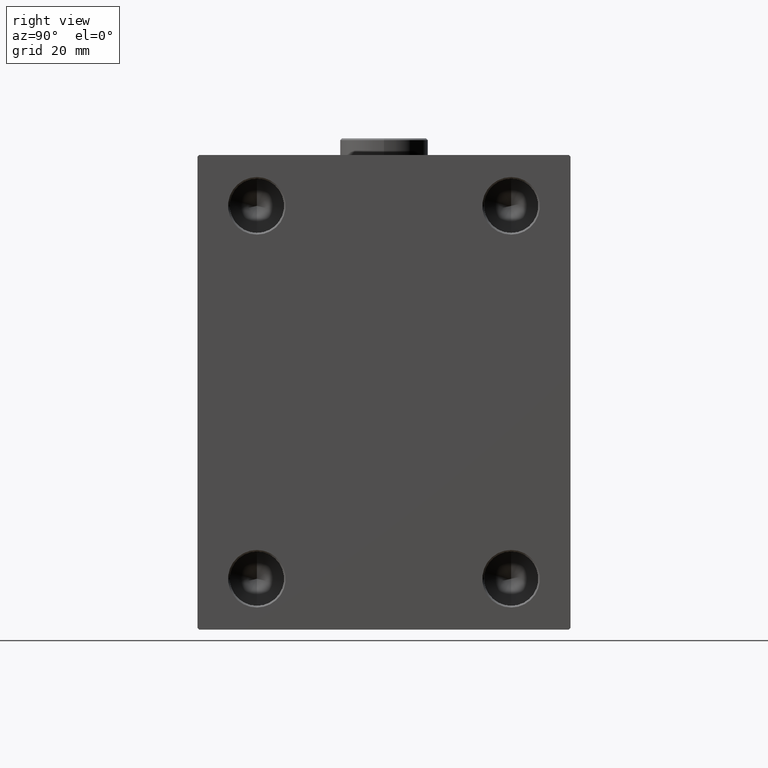
[diagram: clean part render]
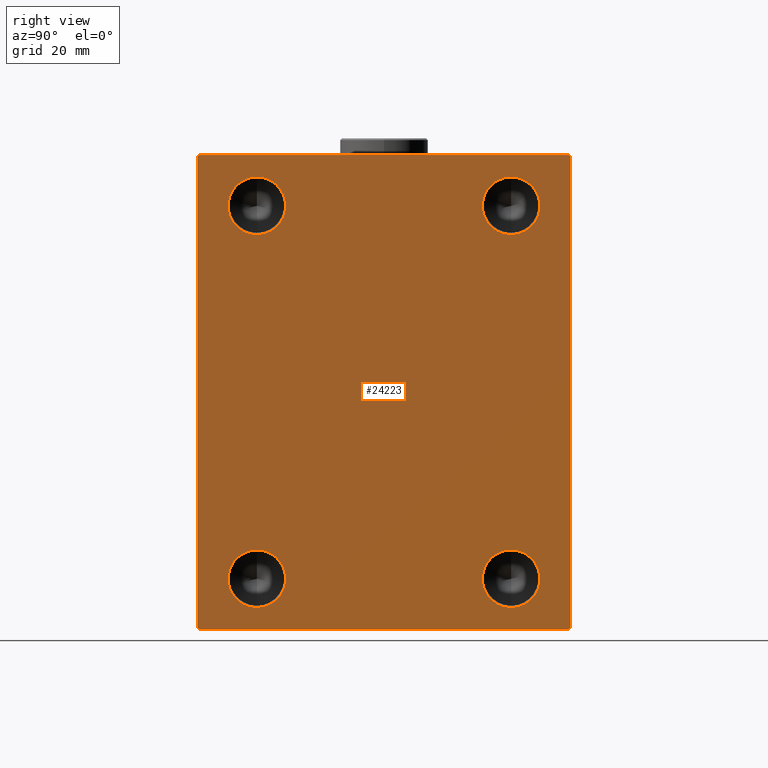
[diagram: same view with one face highlighted and labeled with its STEP entity id]
A machine part, right view. The second image highlights one B-rep face of the part: STEP entity #24223.
In plain terms, the highlighted planar face has unit normal (1, 0, 0).
Its self-contained STEP definition (entity closure, byte-faithful):
#337 = CIRCLE ( 'NONE', #5431, 8.500000000000007105 ) ;
#409 = FACE_BOUND ( 'NONE', #14950, .T. ) ;
#750 = DIRECTION ( 'NONE',  ( 0.000000000000000000, 1.000000000000000000, 1.261617073437677752E-16 ) ) ;
#1080 = CIRCLE ( 'NONE', #6965, 8.500000000000007105 ) ;
#2151 = VERTEX_POINT ( 'NONE', #40454 ) ;
#2391 = CARTESIAN_POINT ( 'NONE',  ( 103.0000000000000000, 55.00000000000000711, -69.49999999999998579 ) ) ;
#2850 = EDGE_CURVE ( 'NONE', #17436, #21728, #36789, .T. ) ;
#3098 = VERTEX_POINT ( 'NONE', #27493 ) ;
#3274 = AXIS2_PLACEMENT_3D ( 'NONE', #36089, #15593, #29849 ) ;
#4138 = CARTESIAN_POINT ( 'NONE',  ( 103.0000000000000000, -37.49999999999999289, -54.99999999999999289 ) ) ;
#4281 = CARTESIAN_POINT ( 'NONE',  ( 103.0000000000000000, -37.49999999999999289, 55.00000000000000711 ) ) ;
#4316 = VERTEX_POINT ( 'NONE', #9520 ) ;
#4649 = CIRCLE ( 'NONE', #19404, 8.500000000000007105 ) ;
#4654 = DIRECTION ( 'NONE',  ( 0.000000000000000000, 0.000000000000000000, -1.000000000000000000 ) ) ;
#5084 = DIRECTION ( 'NONE',  ( 0.000000000000000000, -0.7071067811865524577, -0.7071067811865426878 ) ) ;
#5210 = CARTESIAN_POINT ( 'NONE',  ( 103.0000000000000000, 62.25000000000191136, -62.24999999999759126 ) ) ;
#5243 = CARTESIAN_POINT ( 'NONE',  ( 103.0000000000000000, 55.00000000000000711, -69.99999999999998579 ) ) ;
#5431 = AXIS2_PLACEMENT_3D ( 'NONE', #39242, #15519, #8156 ) ;
#5439 = VERTEX_POINT ( 'NONE', #10387 ) ;
#5454 = VERTEX_POINT ( 'NONE', #29460 ) ;
#5805 = ORIENTED_EDGE ( 'NONE', *, *, #45050, .F. ) ;
#6965 = AXIS2_PLACEMENT_3D ( 'NONE', #4138, #18167, #11272 ) ;
#7426 = CARTESIAN_POINT ( 'NONE',  ( 103.0000000000000000, -55.00000000000000000, -70.00000000000000000 ) ) ;
#7485 = EDGE_CURVE ( 'NONE', #2151, #43047, #8080, .T. ) ;
#7960 = LINE ( 'NONE', #36278, #25871 ) ;
#8080 = LINE ( 'NONE', #36166, #21189 ) ;
#8156 = DIRECTION ( 'NONE',  ( 0.000000000000000000, 0.000000000000000000, -1.000000000000000000 ) ) ;
#8375 = EDGE_CURVE ( 'NONE', #24090, #2151, #42102, .T. ) ;
#8436 = CIRCLE ( 'NONE', #3274, 8.500000000000007105 ) ;
#8501 = AXIS2_PLACEMENT_3D ( 'NONE', #33181, #12242, #43995 ) ;
#9210 = ORIENTED_EDGE ( 'NONE', *, *, #38214, .T. ) ;
#9520 = CARTESIAN_POINT ( 'NONE',  ( 103.0000000000000000, -37.49999999999999289, 46.50000000000000000 ) ) ;
#9605 = LINE ( 'NONE', #27088, #24535 ) ;
#10101 = ORIENTED_EDGE ( 'NONE', *, *, #32319, .T. ) ;
#10114 = DIRECTION ( 'NONE',  ( -0.000000000000000000, -0.7071067811865671127, 0.7071067811865279218 ) ) ;
#10228 = VECTOR ( 'NONE', #33764, 1000.000000000000000 ) ;
#10337 = ORIENTED_EDGE ( 'NONE', *, *, #8375, .T. ) ;
#10387 = CARTESIAN_POINT ( 'NONE',  ( 103.0000000000000000, -37.49999999999999289, -46.49999999999998579 ) ) ;
#10553 = EDGE_LOOP ( 'NONE', ( #20799, #10646 ) ) ;
#10646 = ORIENTED_EDGE ( 'NONE', *, *, #29412, .F. ) ;
#10931 = VECTOR ( 'NONE', #20943, 1000.000000000000000 ) ;
#11193 = DIRECTION ( 'NONE',  ( 0.000000000000000000, 0.000000000000000000, -1.000000000000000000 ) ) ;
#11272 = DIRECTION ( 'NONE',  ( 0.000000000000000000, 0.000000000000000000, -1.000000000000000000 ) ) ;
#11288 = CARTESIAN_POINT ( 'NONE',  ( 103.0000000000000000, -37.49999999999999289, -54.99999999999999289 ) ) ;
#11474 = ORIENTED_EDGE ( 'NONE', *, *, #14219, .T. ) ;
#11933 = VERTEX_POINT ( 'NONE', #23659 ) ;
#12120 = DIRECTION ( 'NONE',  ( -0.000000000000000000, 0.7071067811865230368, 0.7071067811865721087 ) ) ;
#12242 = DIRECTION ( 'NONE',  ( 1.000000000000000000, -0.000000000000000000, -0.000000000000000000 ) ) ;
#12284 = ORIENTED_EDGE ( 'NONE', *, *, #44834, .F. ) ;
#12549 = DIRECTION ( 'NONE',  ( 0.000000000000000000, 0.000000000000000000, -1.000000000000000000 ) ) ;
#12623 = DIRECTION ( 'NONE',  ( 0.000000000000000000, 0.000000000000000000, -1.000000000000000000 ) ) ;
#12633 = DIRECTION ( 'NONE',  ( 0.000000000000000000, 0.000000000000000000, -1.000000000000000000 ) ) ;
#12772 = VECTOR ( 'NONE', #750, 1000.000000000000000 ) ;
#13772 = CARTESIAN_POINT ( 'NONE',  ( 103.0000000000000000, -55.00000000000000000, 69.50000000000002842 ) ) ;
#14219 = EDGE_CURVE ( 'NONE', #45339, #17436, #33055, .T. ) ;
#14845 = EDGE_LOOP ( 'NONE', ( #10337, #31735, #43805, #34732, #10101, #11474, #42553, #9210 ) ) ;
#14950 = EDGE_LOOP ( 'NONE', ( #12284, #23741 ) ) ;
#15308 = CARTESIAN_POINT ( 'NONE',  ( 103.0000000000000000, 54.50000000000004263, -69.99999999999998579 ) ) ;
#15519 = DIRECTION ( 'NONE',  ( 1.000000000000000000, -0.000000000000000000, -0.000000000000000000 ) ) ;
#15593 = DIRECTION ( 'NONE',  ( 1.000000000000000000, -0.000000000000000000, -0.000000000000000000 ) ) ;
#16157 = CARTESIAN_POINT ( 'NONE',  ( 103.0000000000000000, -37.49999999999999289, 63.50000000000001421 ) ) ;
#16822 = CARTESIAN_POINT ( 'NONE',  ( 103.0000000000000000, 37.50000000000000000, 63.50000000000001421 ) ) ;
#17130 = AXIS2_PLACEMENT_3D ( 'NONE', #25822, #36187, #4654 ) ;
#17433 = CARTESIAN_POINT ( 'NONE',  ( 103.0000000000000000, 54.49999999999999289, 70.00000000000001421 ) ) ;
#17436 = VERTEX_POINT ( 'NONE', #2391 ) ;
#17882 = FACE_BOUND ( 'NONE', #31358, .T. ) ;
#18167 = DIRECTION ( 'NONE',  ( 1.000000000000000000, -0.000000000000000000, -0.000000000000000000 ) ) ;
#19404 = AXIS2_PLACEMENT_3D ( 'NONE', #4281, #42727, #11193 ) ;
#20234 = CARTESIAN_POINT ( 'NONE',  ( 103.0000000000000000, 37.50000000000000000, -54.99999999999999289 ) ) ;
#20799 = ORIENTED_EDGE ( 'NONE', *, *, #26431, .F. ) ;
#20943 = DIRECTION ( 'NONE',  ( 0.000000000000000000, -1.000000000000000000, -1.261617073437677999E-16 ) ) ;
#21189 = VECTOR ( 'NONE', #5084, 1000.000000000000000 ) ;
#21388 = VERTEX_POINT ( 'NONE', #16822 ) ;
#21498 = CARTESIAN_POINT ( 'NONE',  ( 103.0000000000000000, 37.50000000000000000, -63.50000000000000000 ) ) ;
#21728 = VERTEX_POINT ( 'NONE', #23923 ) ;
#22354 = EDGE_CURVE ( 'NONE', #11933, #5454, #7960, .T. ) ;
#23659 = CARTESIAN_POINT ( 'NONE',  ( 103.0000000000000000, -55.00000000000000000, -69.50000000000000000 ) ) ;
#23741 = ORIENTED_EDGE ( 'NONE', *, *, #41951, .F. ) ;
#23923 = CARTESIAN_POINT ( 'NONE',  ( 103.0000000000000000, 54.99999999999999289, 69.50000000000004263 ) ) ;
#23984 = VERTEX_POINT ( 'NONE', #34241 ) ;
#24090 = VERTEX_POINT ( 'NONE', #17433 ) ;
#24223 = ADVANCED_FACE ( 'NONE', ( #17882, #31924, #409, #40423, #40203 ), #26587, .T. ) ;
#24535 = VECTOR ( 'NONE', #37238, 1000.000000000000000 ) ;
#25084 = EDGE_LOOP ( 'NONE', ( #35256, #37980 ) ) ;
#25319 = DIRECTION ( 'NONE',  ( 1.000000000000000000, -0.000000000000000000, -0.000000000000000000 ) ) ;
#25558 = CARTESIAN_POINT ( 'NONE',  ( 103.0000000000000000, 37.50000000000000000, -46.49999999999998579 ) ) ;
#25822 = CARTESIAN_POINT ( 'NONE',  ( 103.0000000000000000, -37.49999999999999289, 55.00000000000000711 ) ) ;
#25871 = VECTOR ( 'NONE', #29585, 1000.000000000000000 ) ;
#26136 = CIRCLE ( 'NONE', #8501, 8.500000000000007105 ) ;
#26431 = EDGE_CURVE ( 'NONE', #43889, #4316, #4649, .T. ) ;
#26587 = PLANE ( 'NONE',  #37705 ) ;
#27088 = CARTESIAN_POINT ( 'NONE',  ( 103.0000000000000000, -55.00000000000000000, 70.00000000000000000 ) ) ;
#27143 = CARTESIAN_POINT ( 'NONE',  ( 103.0000000000000000, 62.24999999999849365, 62.25000000000193978 ) ) ;
#27493 = CARTESIAN_POINT ( 'NONE',  ( 103.0000000000000000, -37.49999999999999289, -63.50000000000000000 ) ) ;
#27829 = LINE ( 'NONE', #27143, #28395 ) ;
#27946 = ORIENTED_EDGE ( 'NONE', *, *, #40190, .F. ) ;
#28395 = VECTOR ( 'NONE', #10114, 1000.000000000000000 ) ;
#29412 = EDGE_CURVE ( 'NONE', #4316, #43889, #42852, .T. ) ;
#29460 = CARTESIAN_POINT ( 'NONE',  ( 103.0000000000000000, -54.49999999999997158, -70.00000000000000000 ) ) ;
#29585 = DIRECTION ( 'NONE',  ( -0.000000000000000000, 0.7071067811865672237, -0.7071067811865279218 ) ) ;
#29672 = CIRCLE ( 'NONE', #40718, 8.500000000000007105 ) ;
#29849 = DIRECTION ( 'NONE',  ( 0.000000000000000000, 0.000000000000000000, -1.000000000000000000 ) ) ;
#30042 = DIRECTION ( 'NONE',  ( 1.000000000000000000, 0.000000000000000000, 0.000000000000000000 ) ) ;
#30455 = AXIS2_PLACEMENT_3D ( 'NONE', #11288, #25319, #12633 ) ;
#30796 = VECTOR ( 'NONE', #12120, 999.9999999999998863 ) ;
#31278 = CARTESIAN_POINT ( 'NONE',  ( 103.0000000000000000, 54.99999999999999289, 70.00000000000001421 ) ) ;
#31358 = EDGE_LOOP ( 'NONE', ( #5805, #27946 ) ) ;
#31735 = ORIENTED_EDGE ( 'NONE', *, *, #7485, .T. ) ;
#31924 = FACE_BOUND ( 'NONE', #10553, .T. ) ;
#32319 = EDGE_CURVE ( 'NONE', #5454, #45339, #36179, .T. ) ;
#33041 = VERTEX_POINT ( 'NONE', #21498 ) ;
#33055 = LINE ( 'NONE', #5210, #30796 ) ;
#33181 = CARTESIAN_POINT ( 'NONE',  ( 103.0000000000000000, 37.50000000000000000, -54.99999999999999289 ) ) ;
#33504 = CARTESIAN_POINT ( 'NONE',  ( 103.0000000000000000, 0.000000000000000000, 0.000000000000000000 ) ) ;
#33764 = DIRECTION ( 'NONE',  ( 0.000000000000000000, -9.912705577010325549E-17, 1.000000000000000000 ) ) ;
#34241 = CARTESIAN_POINT ( 'NONE',  ( 103.0000000000000000, 37.50000000000000000, 46.50000000000000000 ) ) ;
#34732 = ORIENTED_EDGE ( 'NONE', *, *, #22354, .T. ) ;
#35256 = ORIENTED_EDGE ( 'NONE', *, *, #35905, .F. ) ;
#35905 = EDGE_CURVE ( 'NONE', #38131, #33041, #26136, .T. ) ;
#36089 = CARTESIAN_POINT ( 'NONE',  ( 103.0000000000000000, 37.50000000000000000, 55.00000000000000711 ) ) ;
#36166 = CARTESIAN_POINT ( 'NONE',  ( 103.0000000000000000, -62.24999999999963762, 62.25000000000049738 ) ) ;
#36179 = LINE ( 'NONE', #7426, #12772 ) ;
#36187 = DIRECTION ( 'NONE',  ( 1.000000000000000000, -0.000000000000000000, -0.000000000000000000 ) ) ;
#36278 = CARTESIAN_POINT ( 'NONE',  ( 103.0000000000000000, -62.24999999999847233, -62.25000000000193268 ) ) ;
#36789 = LINE ( 'NONE', #5243, #10228 ) ;
#37238 = DIRECTION ( 'NONE',  ( 0.000000000000000000, 0.000000000000000000, -1.000000000000000000 ) ) ;
#37705 = AXIS2_PLACEMENT_3D ( 'NONE', #33504, #30042, #12549 ) ;
#37980 = ORIENTED_EDGE ( 'NONE', *, *, #44210, .F. ) ;
#38131 = VERTEX_POINT ( 'NONE', #25558 ) ;
#38214 = EDGE_CURVE ( 'NONE', #21728, #24090, #27829, .T. ) ;
#38572 = EDGE_CURVE ( 'NONE', #43047, #11933, #9605, .T. ) ;
#39242 = CARTESIAN_POINT ( 'NONE',  ( 103.0000000000000000, 37.50000000000000000, 55.00000000000000711 ) ) ;
#40045 = CIRCLE ( 'NONE', #30455, 8.500000000000007105 ) ;
#40190 = EDGE_CURVE ( 'NONE', #23984, #21388, #337, .T. ) ;
#40203 = FACE_OUTER_BOUND ( 'NONE', #14845, .T. ) ;
#40423 = FACE_BOUND ( 'NONE', #25084, .T. ) ;
#40454 = CARTESIAN_POINT ( 'NONE',  ( 103.0000000000000000, -54.50000000000002132, 70.00000000000000000 ) ) ;
#40718 = AXIS2_PLACEMENT_3D ( 'NONE', #20234, #41175, #12623 ) ;
#41175 = DIRECTION ( 'NONE',  ( 1.000000000000000000, -0.000000000000000000, -0.000000000000000000 ) ) ;
#41951 = EDGE_CURVE ( 'NONE', #3098, #5439, #1080, .T. ) ;
#42102 = LINE ( 'NONE', #31278, #10931 ) ;
#42553 = ORIENTED_EDGE ( 'NONE', *, *, #2850, .T. ) ;
#42727 = DIRECTION ( 'NONE',  ( 1.000000000000000000, -0.000000000000000000, -0.000000000000000000 ) ) ;
#42852 = CIRCLE ( 'NONE', #17130, 8.500000000000007105 ) ;
#43047 = VERTEX_POINT ( 'NONE', #13772 ) ;
#43805 = ORIENTED_EDGE ( 'NONE', *, *, #38572, .T. ) ;
#43889 = VERTEX_POINT ( 'NONE', #16157 ) ;
#43995 = DIRECTION ( 'NONE',  ( 0.000000000000000000, 0.000000000000000000, -1.000000000000000000 ) ) ;
#44210 = EDGE_CURVE ( 'NONE', #33041, #38131, #29672, .T. ) ;
#44834 = EDGE_CURVE ( 'NONE', #5439, #3098, #40045, .T. ) ;
#45050 = EDGE_CURVE ( 'NONE', #21388, #23984, #8436, .T. ) ;
#45339 = VERTEX_POINT ( 'NONE', #15308 ) ;